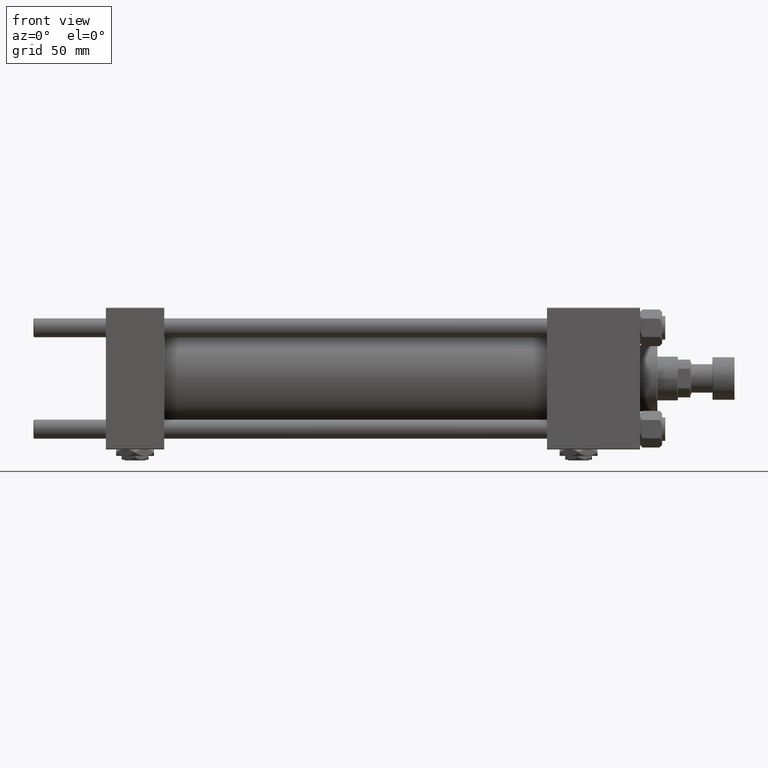
[diagram: clean part render]
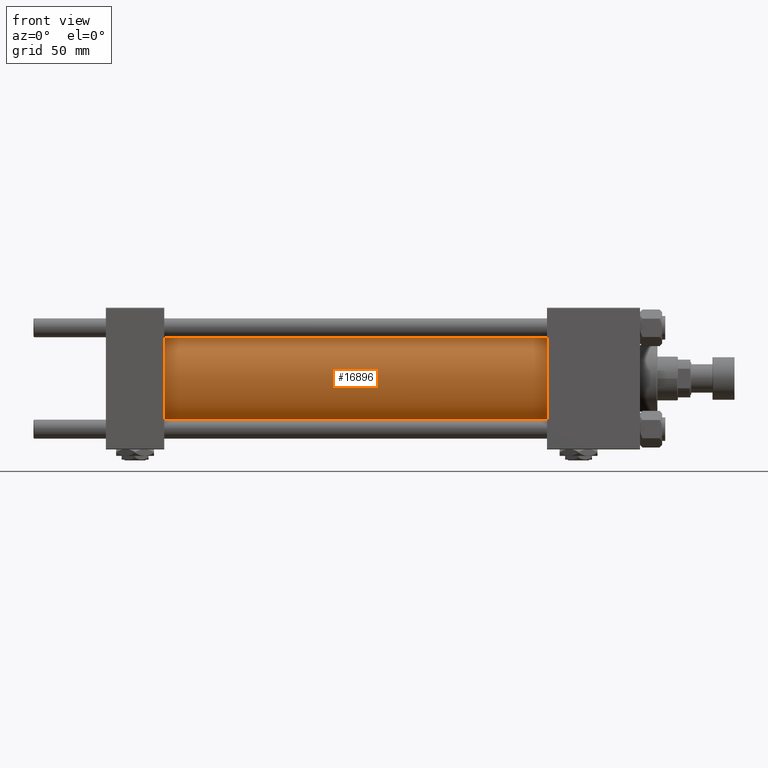
[diagram: same view with one face highlighted and labeled with its STEP entity id]
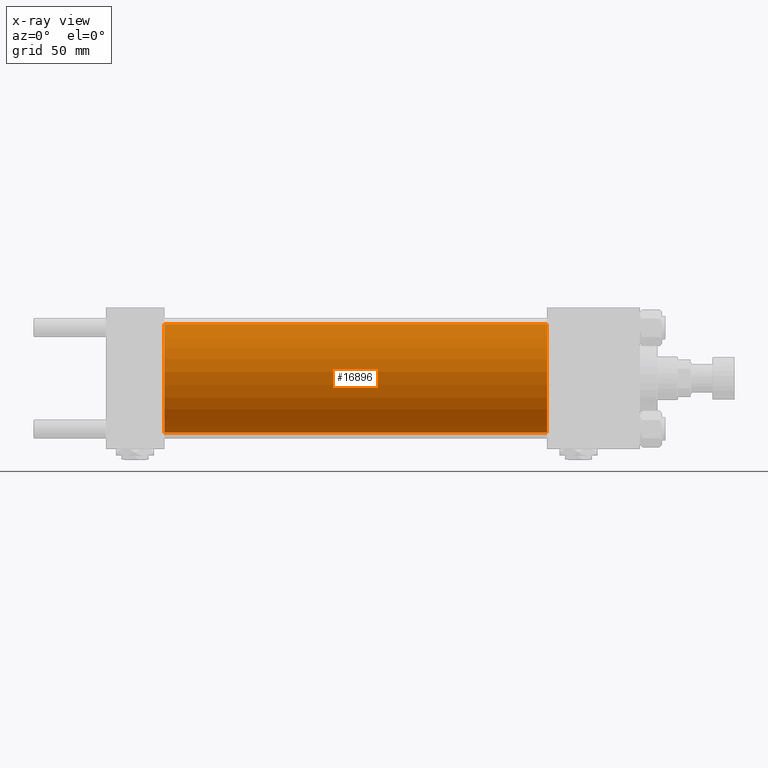
[diagram: x-ray of the same camera — body ghosted, the highlighted face saturated]
A machine part, front view. The second image highlights one B-rep face of the part: STEP entity #16896.
The next image is the same camera in x-ray: the body ghosted, the highlighted face saturated — about 0% of this face is hidden behind the body in this view.
In plain terms, the highlighted cylindrical surface (partial cylindrical patch) has radius 34.5 mm, axis along (-1, -0, -0).
Its self-contained STEP definition (entity closure, byte-faithful):
#3733 = DIRECTION ( 'NONE',  ( 0.000000000000000000, 0.000000000000000000, 1.000000000000000000 ) ) ;
#3784 = AXIS2_PLACEMENT_3D ( 'NONE', #31008, #39195, #10651 ) ;
#3839 = EDGE_LOOP ( 'NONE', ( #12662, #25003, #22707, #37596 ) ) ;
#5810 = LINE ( 'NONE', #50499, #41899 ) ;
#7907 = DIRECTION ( 'NONE',  ( -1.000000000000000000, -0.000000000000000000, -0.000000000000000000 ) ) ;
#8118 = CARTESIAN_POINT ( 'NONE',  ( 279.9999999999999432, 4.225031457058367344E-15, -34.49999999999999289 ) ) ;
#9024 = VERTEX_POINT ( 'NONE', #35881 ) ;
#10651 = DIRECTION ( 'NONE',  ( 0.000000000000000000, 0.000000000000000000, -1.000000000000000000 ) ) ;
#12634 = DIRECTION ( 'NONE',  ( 0.000000000000000000, 0.000000000000000000, 1.000000000000000000 ) ) ;
#12662 = ORIENTED_EDGE ( 'NONE', *, *, #22449, .F. ) ;
#16896 = ADVANCED_FACE ( 'NONE', ( #24543 ), #35902, .T. ) ;
#19664 = EDGE_CURVE ( 'NONE', #24316, #21342, #19837, .T. ) ;
#19837 = CIRCLE ( 'NONE', #3784, 34.49999999999999289 ) ;
#20805 = LINE ( 'NONE', #8118, #46083 ) ;
#21199 = CARTESIAN_POINT ( 'NONE',  ( 37.00000000000000711, 0.000000000000000000, 34.49999999999999289 ) ) ;
#21342 = VERTEX_POINT ( 'NONE', #21950 ) ;
#21950 = CARTESIAN_POINT ( 'NONE',  ( 279.9999999999999432, 4.225031457058367344E-15, -34.49999999999999289 ) ) ;
#22449 = EDGE_CURVE ( 'NONE', #21342, #9024, #20805, .T. ) ;
#22707 = ORIENTED_EDGE ( 'NONE', *, *, #33402, .T. ) ;
#24316 = VERTEX_POINT ( 'NONE', #34666 ) ;
#24543 = FACE_OUTER_BOUND ( 'NONE', #3839, .T. ) ;
#25003 = ORIENTED_EDGE ( 'NONE', *, *, #19664, .F. ) ;
#25865 = VERTEX_POINT ( 'NONE', #21199 ) ;
#31008 = CARTESIAN_POINT ( 'NONE',  ( 279.9999999999999432, 0.000000000000000000, 0.000000000000000000 ) ) ;
#31650 = DIRECTION ( 'NONE',  ( -1.000000000000000000, -0.000000000000000000, -0.000000000000000000 ) ) ;
#33402 = EDGE_CURVE ( 'NONE', #24316, #25865, #5810, .T. ) ;
#34666 = CARTESIAN_POINT ( 'NONE',  ( 279.9999999999999432, 0.000000000000000000, 34.49999999999999289 ) ) ;
#35881 = CARTESIAN_POINT ( 'NONE',  ( 37.00000000000000711, 4.225031457058367344E-15, -34.49999999999999289 ) ) ;
#35902 = CYLINDRICAL_SURFACE ( 'NONE', #44365, 34.49999999999999289 ) ;
#36910 = DIRECTION ( 'NONE',  ( -1.000000000000000000, -0.000000000000000000, -0.000000000000000000 ) ) ;
#37596 = ORIENTED_EDGE ( 'NONE', *, *, #42817, .T. ) ;
#39195 = DIRECTION ( 'NONE',  ( 1.000000000000000000, 0.000000000000000000, 0.000000000000000000 ) ) ;
#39954 = CARTESIAN_POINT ( 'NONE',  ( 37.00000000000000711, 0.000000000000000000, 0.000000000000000000 ) ) ;
#40682 = CARTESIAN_POINT ( 'NONE',  ( 279.9999999999999432, 0.000000000000000000, 0.000000000000000000 ) ) ;
#41899 = VECTOR ( 'NONE', #31650, 1000.000000000000000 ) ;
#42112 = AXIS2_PLACEMENT_3D ( 'NONE', #39954, #47906, #3733 ) ;
#42817 = EDGE_CURVE ( 'NONE', #25865, #9024, #46342, .T. ) ;
#44365 = AXIS2_PLACEMENT_3D ( 'NONE', #40682, #7907, #12634 ) ;
#46083 = VECTOR ( 'NONE', #36910, 1000.000000000000000 ) ;
#46342 = CIRCLE ( 'NONE', #42112, 34.49999999999999289 ) ;
#47906 = DIRECTION ( 'NONE',  ( 1.000000000000000000, -0.000000000000000000, 0.000000000000000000 ) ) ;
#50499 = CARTESIAN_POINT ( 'NONE',  ( 279.9999999999999432, 0.000000000000000000, 34.49999999999999289 ) ) ;